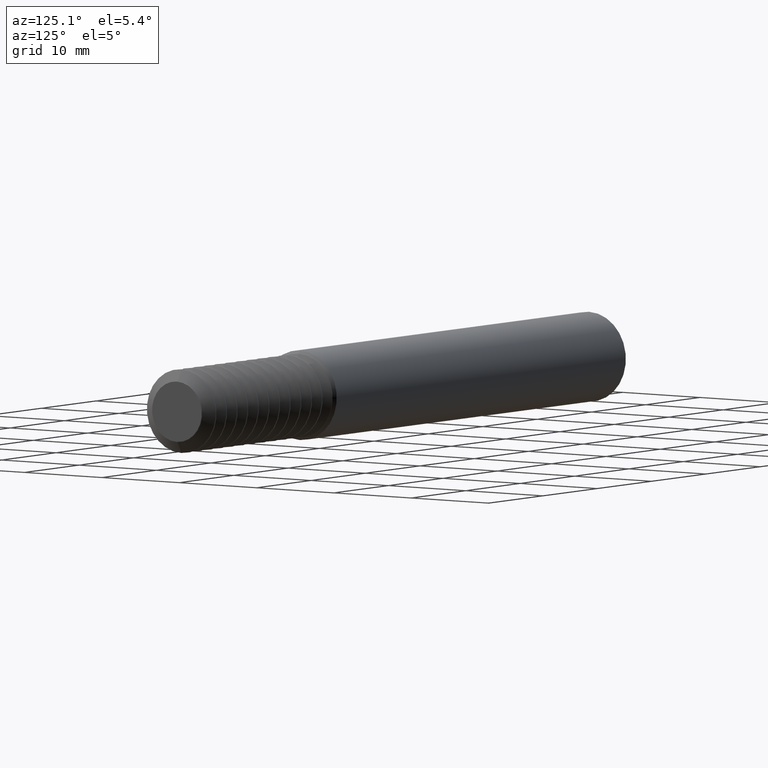
[diagram: clean part render]
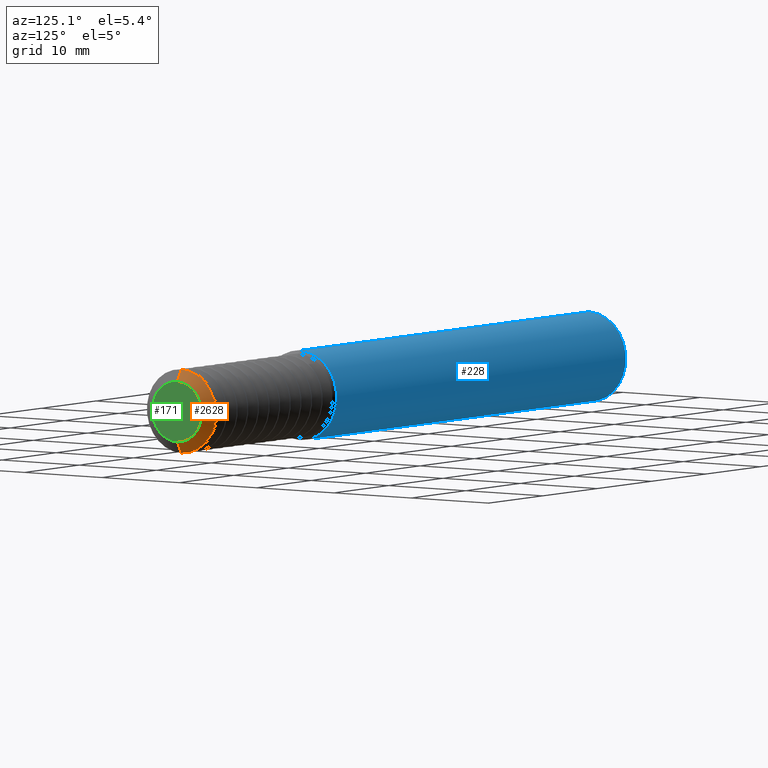
[diagram: same view with three faces highlighted in distinct colors, each labeled with its STEP entity id]
A machine part, auxiliary view with three faces highlighted in distinct colors.
Their STEP definitions:

[orange] entity #2628 — the highlighted conical surface has half-angle 60.25 deg.
#10 = CARTESIAN_POINT ( 'NONE',  ( 2.968150000000001398, 0.000000000000000000, 0.000000000000000000 ) ) ;
#86 = DIRECTION ( 'NONE',  ( 0.000000000000000000, 0.000000000000000000, 1.000000000000000000 ) ) ;
#96 = FACE_OUTER_BOUND ( 'NONE', #951, .T. ) ;
#151 = LINE ( 'NONE', #2186, #2384 ) ;
#332 = ORIENTED_EDGE ( 'NONE', *, *, #627, .F. ) ;
#400 = DIRECTION ( 'NONE',  ( -0.4962165036752012037, 1.063236899187659723E-16, -0.8681988144891462644 ) ) ;
#483 = ORIENTED_EDGE ( 'NONE', *, *, #1092, .T. ) ;
#540 = VERTEX_POINT ( 'NONE', #1519 ) ;
#627 = EDGE_CURVE ( 'NONE', #1101, #540, #1560, .T. ) ;
#633 = VERTEX_POINT ( 'NONE', #773 ) ;
#745 = CARTESIAN_POINT ( 'NONE',  ( 2.995961538461538343, 0.000000000000000000, 0.1263398999376476595 ) ) ;
#773 = CARTESIAN_POINT ( 'NONE',  ( 2.968150000000001398, 2.143131898507863675E-17, -0.1749999999999996281 ) ) ;
#902 = AXIS2_PLACEMENT_3D ( 'NONE', #10, #2005, #1222 ) ;
#951 = EDGE_LOOP ( 'NONE', ( #1418, #483, #2157, #332 ) ) ;
#1006 = CARTESIAN_POINT ( 'NONE',  ( 2.956719058252696986, 0.000000000000000000, 0.1949999999999999789 ) ) ;
#1060 = CARTESIAN_POINT ( 'NONE',  ( 2.956719058252696986, 0.000000000000000000, 0.000000000000000000 ) ) ;
#1069 = AXIS2_PLACEMENT_3D ( 'NONE', #1102, #1261, #86 ) ;
#1092 = EDGE_CURVE ( 'NONE', #1507, #633, #151, .T. ) ;
#1101 = VERTEX_POINT ( 'NONE', #745 ) ;
#1102 = CARTESIAN_POINT ( 'NONE',  ( 2.995961538461538343, 0.000000000000000000, 0.000000000000000000 ) ) ;
#1222 = DIRECTION ( 'NONE',  ( 0.000000000000000000, 0.000000000000000000, 1.000000000000000000 ) ) ;
#1261 = DIRECTION ( 'NONE',  ( -1.000000000000000000, -0.000000000000000000, -0.000000000000000000 ) ) ;
#1418 = ORIENTED_EDGE ( 'NONE', *, *, #2223, .T. ) ;
#1467 = DIRECTION ( 'NONE',  ( -1.000000000000000000, -0.000000000000000000, -0.000000000000000000 ) ) ;
#1507 = VERTEX_POINT ( 'NONE', #1968 ) ;
#1519 = CARTESIAN_POINT ( 'NONE',  ( 2.968150000000001398, 0.000000000000000000, 0.1749999999999996281 ) ) ;
#1560 = LINE ( 'NONE', #1006, #1690 ) ;
#1690 = VECTOR ( 'NONE', #1805, 39.37007874015748143 ) ;
#1805 = DIRECTION ( 'NONE',  ( -0.4962165036752012037, 0.000000000000000000, 0.8681988144891462644 ) ) ;
#1968 = CARTESIAN_POINT ( 'NONE',  ( 2.995961538461538343, 1.547217540632370930E-17, -0.1263398999376476595 ) ) ;
#1993 = CIRCLE ( 'NONE', #902, 0.1749999999999999889 ) ;
#2005 = DIRECTION ( 'NONE',  ( -1.000000000000000000, -0.000000000000000000, -0.000000000000000000 ) ) ;
#2089 = EDGE_CURVE ( 'NONE', #540, #633, #1993, .T. ) ;
#2157 = ORIENTED_EDGE ( 'NONE', *, *, #2089, .F. ) ;
#2175 = AXIS2_PLACEMENT_3D ( 'NONE', #1060, #1467, #2526 ) ;
#2186 = CARTESIAN_POINT ( 'NONE',  ( 2.956719058252696986, 2.388061258337338397E-17, -0.1949999999999999789 ) ) ;
#2223 = EDGE_CURVE ( 'NONE', #1101, #1507, #2472, .T. ) ;
#2384 = VECTOR ( 'NONE', #400, 39.37007874015748143 ) ;
#2392 = CONICAL_SURFACE ( 'NONE', #2175, 0.1949999999999999789, 1.051560874326591621 ) ;
#2472 = CIRCLE ( 'NONE', #1069, 0.1263398999376476595 ) ;
#2526 = DIRECTION ( 'NONE',  ( 0.000000000000000000, 0.000000000000000000, 1.000000000000000000 ) ) ;
#2628 = ADVANCED_FACE ( 'NONE', ( #96 ), #2392, .T. ) ;

[blue] entity #228 — the highlighted cylindrical surface (partial cylindrical patch) has radius 4.7587 mm, axis along (1, -0, -0).
#134 = VECTOR ( 'NONE', #2158, 39.37007874015748143 ) ;
#228 = ADVANCED_FACE ( 'NONE', ( #618 ), #1420, .T. ) ;
#239 = CARTESIAN_POINT ( 'NONE',  ( 2.108649999999999913, 0.000000000000000000, 0.000000000000000000 ) ) ;
#300 = EDGE_CURVE ( 'NONE', #1886, #496, #1316, .T. ) ;
#375 = CARTESIAN_POINT ( 'NONE',  ( 3.000000000000000444, 0.000000000000000000, -0.1873499999999999888 ) ) ;
#415 = DIRECTION ( 'NONE',  ( 1.000000000000000000, -0.000000000000000000, -0.000000000000000000 ) ) ;
#442 = VECTOR ( 'NONE', #1899, 39.37007874015748143 ) ;
#496 = VERTEX_POINT ( 'NONE', #2312 ) ;
#552 = AXIS2_PLACEMENT_3D ( 'NONE', #239, #669, #1040 ) ;
#618 = FACE_OUTER_BOUND ( 'NONE', #2579, .T. ) ;
#656 = EDGE_CURVE ( 'NONE', #756, #1886, #1611, .T. ) ;
#659 = DIRECTION ( 'NONE',  ( 1.000000000000000000, -0.000000000000000000, -0.000000000000000000 ) ) ;
#669 = DIRECTION ( 'NONE',  ( 1.000000000000000000, -0.000000000000000000, -0.000000000000000000 ) ) ;
#756 = VERTEX_POINT ( 'NONE', #1875 ) ;
#806 = AXIS2_PLACEMENT_3D ( 'NONE', #987, #415, #1221 ) ;
#817 = AXIS2_PLACEMENT_3D ( 'NONE', #922, #659, #1460 ) ;
#884 = ORIENTED_EDGE ( 'NONE', *, *, #2229, .T. ) ;
#922 = CARTESIAN_POINT ( 'NONE',  ( 0.01500000000000134212, 0.000000000000000000, 0.000000000000000000 ) ) ;
#987 = CARTESIAN_POINT ( 'NONE',  ( 3.000000000000000444, 0.000000000000000000, 0.000000000000000000 ) ) ;
#1040 = DIRECTION ( 'NONE',  ( 0.000000000000000000, 0.000000000000000000, -1.000000000000000000 ) ) ;
#1221 = DIRECTION ( 'NONE',  ( 0.000000000000000000, 0.000000000000000000, -1.000000000000000000 ) ) ;
#1286 = CARTESIAN_POINT ( 'NONE',  ( 3.000000000000000444, 2.294375778202566330E-17, 0.1873499999999999888 ) ) ;
#1316 = CIRCLE ( 'NONE', #552, 0.1873499999999999888 ) ;
#1420 = CYLINDRICAL_SURFACE ( 'NONE', #806, 0.1873499999999999888 ) ;
#1460 = DIRECTION ( 'NONE',  ( 0.000000000000000000, 0.000000000000000000, 1.000000000000000000 ) ) ;
#1558 = VERTEX_POINT ( 'NONE', #1593 ) ;
#1593 = CARTESIAN_POINT ( 'NONE',  ( 0.01500000000000134212, 2.294375778202566330E-17, 0.1873499999999999888 ) ) ;
#1611 = LINE ( 'NONE', #375, #134 ) ;
#1613 = CIRCLE ( 'NONE', #817, 0.1873499999999999888 ) ;
#1791 = CARTESIAN_POINT ( 'NONE',  ( 2.108649999999999913, 0.000000000000000000, -0.1873499999999999888 ) ) ;
#1800 = ORIENTED_EDGE ( 'NONE', *, *, #300, .F. ) ;
#1875 = CARTESIAN_POINT ( 'NONE',  ( 0.01500000000000134212, 0.000000000000000000, -0.1873499999999999888 ) ) ;
#1886 = VERTEX_POINT ( 'NONE', #1791 ) ;
#1899 = DIRECTION ( 'NONE',  ( 1.000000000000000000, -0.000000000000000000, -0.000000000000000000 ) ) ;
#2001 = ORIENTED_EDGE ( 'NONE', *, *, #2598, .T. ) ;
#2066 = LINE ( 'NONE', #1286, #442 ) ;
#2158 = DIRECTION ( 'NONE',  ( 1.000000000000000000, -0.000000000000000000, -0.000000000000000000 ) ) ;
#2229 = EDGE_CURVE ( 'NONE', #756, #1558, #1613, .T. ) ;
#2257 = ORIENTED_EDGE ( 'NONE', *, *, #656, .F. ) ;
#2312 = CARTESIAN_POINT ( 'NONE',  ( 2.108649999999999913, 2.294375778202566330E-17, 0.1873499999999999888 ) ) ;
#2579 = EDGE_LOOP ( 'NONE', ( #884, #2001, #1800, #2257 ) ) ;
#2598 = EDGE_CURVE ( 'NONE', #1558, #496, #2066, .T. ) ;

[green] entity #171 — the highlighted planar face has unit normal (1, 0, -0).
#171 = ADVANCED_FACE ( 'NONE', ( #1408 ), #220, .T. ) ;
#211 = VERTEX_POINT ( 'NONE', #1808 ) ;
#220 = PLANE ( 'NONE',  #1604 ) ;
#405 = DIRECTION ( 'NONE',  ( 1.000000000000000000, 0.000000000000000000, -0.000000000000000000 ) ) ;
#425 = CARTESIAN_POINT ( 'NONE',  ( 3.000000000000000444, 0.000000000000000000, 0.1263398999376476595 ) ) ;
#534 = ORIENTED_EDGE ( 'NONE', *, *, #1100, .T. ) ;
#565 = CIRCLE ( 'NONE', #2260, 0.1263398999376476595 ) ;
#605 = AXIS2_PLACEMENT_3D ( 'NONE', #967, #2609, #1970 ) ;
#629 = DIRECTION ( 'NONE',  ( 1.000000000000000000, -0.000000000000000000, -0.000000000000000000 ) ) ;
#967 = CARTESIAN_POINT ( 'NONE',  ( 3.000000000000000444, 0.000000000000000000, 0.000000000000000000 ) ) ;
#1100 = EDGE_CURVE ( 'NONE', #2445, #211, #1907, .T. ) ;
#1408 = FACE_OUTER_BOUND ( 'NONE', #1413, .T. ) ;
#1413 = EDGE_LOOP ( 'NONE', ( #534, #2286 ) ) ;
#1604 = AXIS2_PLACEMENT_3D ( 'NONE', #2220, #405, #2232 ) ;
#1808 = CARTESIAN_POINT ( 'NONE',  ( 3.000000000000000444, 1.547217540632370930E-17, -0.1263398999376476595 ) ) ;
#1907 = CIRCLE ( 'NONE', #605, 0.1263398999376476595 ) ;
#1970 = DIRECTION ( 'NONE',  ( 0.000000000000000000, 0.000000000000000000, -1.000000000000000000 ) ) ;
#2023 = CARTESIAN_POINT ( 'NONE',  ( 3.000000000000000444, 0.000000000000000000, 0.000000000000000000 ) ) ;
#2220 = CARTESIAN_POINT ( 'NONE',  ( 3.000000000000000444, 0.1749999999999999889, 0.000000000000000000 ) ) ;
#2232 = DIRECTION ( 'NONE',  ( -0.000000000000000000, 0.000000000000000000, -1.000000000000000000 ) ) ;
#2260 = AXIS2_PLACEMENT_3D ( 'NONE', #2023, #629, #2448 ) ;
#2286 = ORIENTED_EDGE ( 'NONE', *, *, #2411, .T. ) ;
#2411 = EDGE_CURVE ( 'NONE', #211, #2445, #565, .T. ) ;
#2445 = VERTEX_POINT ( 'NONE', #425 ) ;
#2448 = DIRECTION ( 'NONE',  ( 0.000000000000000000, 0.000000000000000000, -1.000000000000000000 ) ) ;
#2609 = DIRECTION ( 'NONE',  ( 1.000000000000000000, -0.000000000000000000, -0.000000000000000000 ) ) ;